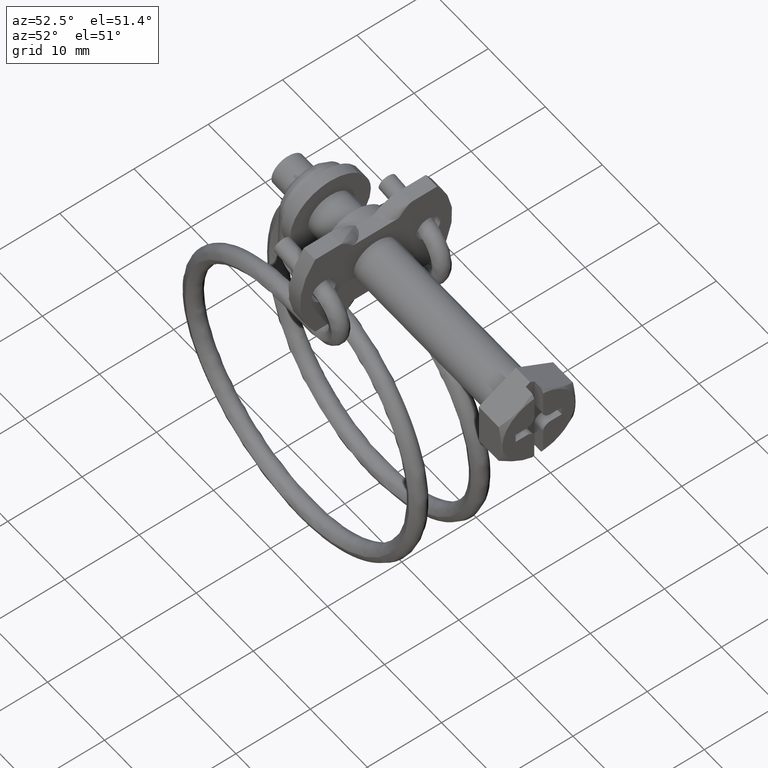
[diagram: clean part render]
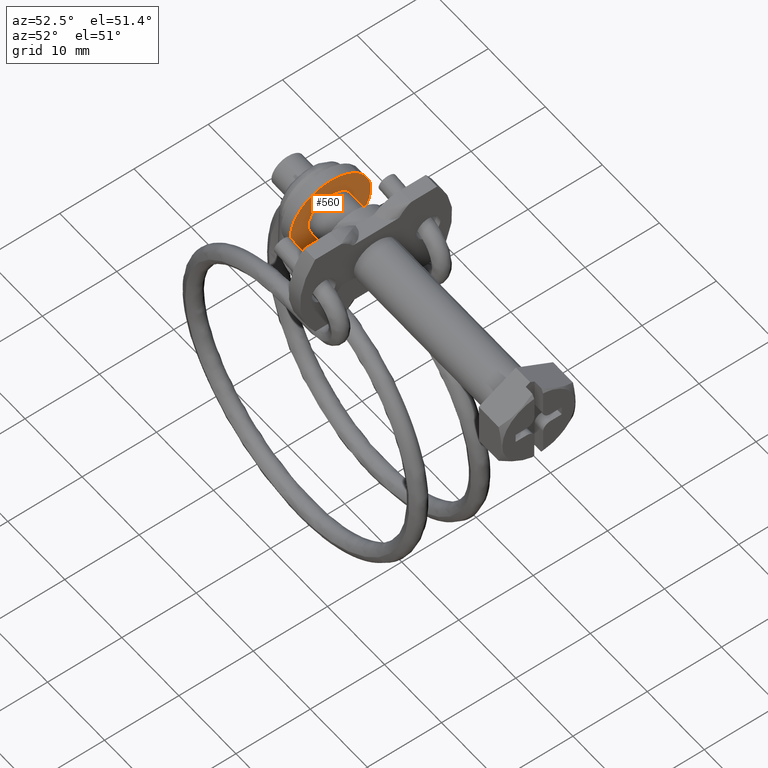
[diagram: same view with one face highlighted and labeled with its STEP entity id]
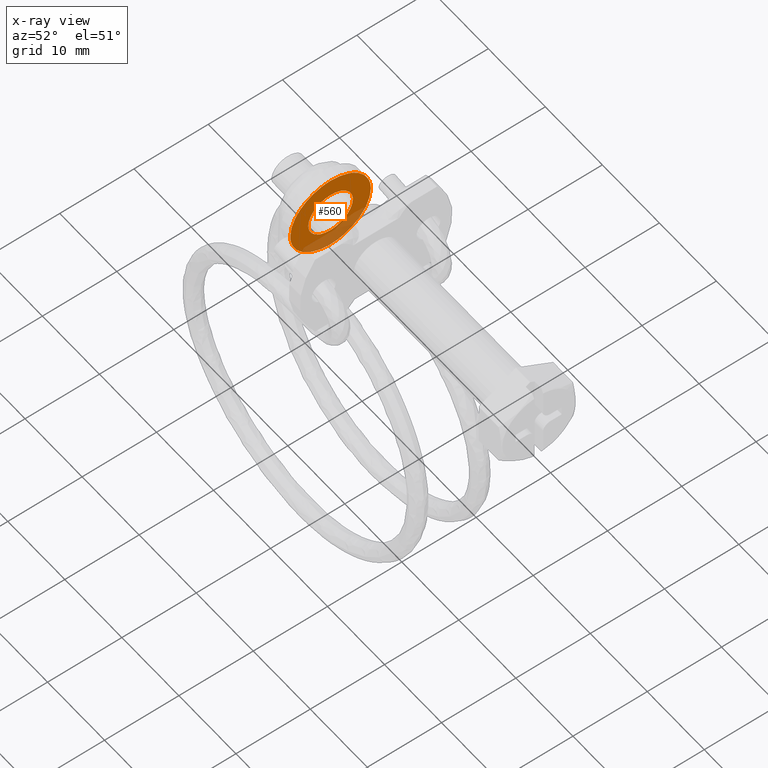
[diagram: x-ray of the same camera — body ghosted, the highlighted face saturated]
A machine part, auxiliary view. The second image highlights one B-rep face of the part: STEP entity #560.
The next image is the same camera in x-ray: the body ghosted, the highlighted face saturated — about 23% of this face is hidden behind the body in this view.
In plain terms, the highlighted face is a freeform B-spline surface patch.
Its self-contained STEP definition (entity closure, byte-faithful):
#342=CARTESIAN_POINT('',(-32.500000000000000,3.734323521256805,3.935155867043152));
#343=VERTEX_POINT('',#342);
#349=CARTESIAN_POINT('',(-32.500000000000000,5.424999999999884,-0.000000421098080));
#350=VERTEX_POINT('',#349);
#351=CARTESIAN_POINT('',(-32.500000000000000,3.734323521256805,3.935155867043152));
#352=CARTESIAN_POINT('',(-32.499999999999979,4.033793532143092,3.651083841868599));
#353=CARTESIAN_POINT('',(-32.500000000000007,4.567369683665546,3.014126316166802));
#354=CARTESIAN_POINT('',(-32.500000000000050,5.099673369908720,1.964227579516659));
#355=CARTESIAN_POINT('',(-32.499999999999901,5.371955420877497,0.940178816455195));
#356=CARTESIAN_POINT('',(-32.500000000000149,5.425016577167388,0.298106872457630));
#357=CARTESIAN_POINT('',(-32.500000000000000,5.424999999999884,-0.000000421098080));
#358=B_SPLINE_CURVE_WITH_KNOTS('',3,(#351,#352,#353,#354,#355,#356,#357),.UNSPECIFIED.,.F.,.U.,(4,1,1,1,4),(2.738050E-009,1.238299528593752,2.476597508122359,3.508514047958686,4.402841052552716),.UNSPECIFIED.);
#359=EDGE_CURVE('',#343,#350,#358,.T.);
#361=CARTESIAN_POINT('',(-32.500000000000000,0.0,-5.424999999999900));
#362=VERTEX_POINT('',#361);
#363=CARTESIAN_POINT('',(-32.500000000000000,5.424999999999884,-0.000000421098080));
#364=CARTESIAN_POINT('',(-32.500000000000057,5.425128311448582,-0.466039566988412));
#365=CARTESIAN_POINT('',(-32.499999999999922,5.335805438647428,-1.153905723362684));
#366=CARTESIAN_POINT('',(-32.500000000000057,5.049793430154235,-2.019457337929087));
#367=CARTESIAN_POINT('',(-32.499999999999957,4.736108573469029,-2.682723676852972));
#368=CARTESIAN_POINT('',(-32.500000000000327,4.233723725335923,-3.444780517004545));
#369=CARTESIAN_POINT('',(-32.499999999999368,3.500881994840348,-4.195873404332564));
#370=CARTESIAN_POINT('',(-32.500000000000512,2.647973794513322,-4.765699434653855));
#371=CARTESIAN_POINT('',(-32.500000000000128,1.874923719669006,-5.108327825447629));
#372=CARTESIAN_POINT('',(-32.499999999999517,1.020780500591491,-5.356044465367443));
#373=CARTESIAN_POINT('',(-32.500000000000490,0.399453875268827,-5.425077895267445));
#374=CARTESIAN_POINT('',(-32.500000000000000,0.0,-5.424999999999900));
#375=B_SPLINE_CURVE_WITH_KNOTS('',3,(#363,#364,#365,#366,#367,#368,#369,#370,#371,#372,#373,#374),.UNSPECIFIED.,.F.,.U.,(4,1,1,1,1,1,1,1,1,4),(0.000000010160747,1.398078814485325,2.063830060229409,2.729584752818163,3.595072530238858,4.793400779355290,5.858615189520917,6.657520546147322,7.323278233466141,8.521623304758112),.UNSPECIFIED.);
#376=EDGE_CURVE('',#350,#362,#375,.T.);
#378=CARTESIAN_POINT('',(-32.500000000000000,-3.734323521256823,-3.935155867043171));
#379=VERTEX_POINT('',#378);
#380=CARTESIAN_POINT('',(-32.500000000000000,0.0,-5.424999999999900));
#381=CARTESIAN_POINT('',(-32.500000000000071,-0.300327275246052,-5.425020422372140));
#382=CARTESIAN_POINT('',(-32.499999999999957,-0.922427690450401,-5.373216451881911));
#383=CARTESIAN_POINT('',(-32.499999999999922,-1.776869925675551,-5.150447426223127));
#384=CARTESIAN_POINT('',(-32.500000000000107,-2.760856510169396,-4.716722912087714));
#385=CARTESIAN_POINT('',(-32.500000000000028,-3.376523773262524,-4.274919365831121));
#386=CARTESIAN_POINT('',(-32.500000000000000,-3.734323521256823,-3.935155867043171));
#387=B_SPLINE_CURVE_WITH_KNOTS('',3,(#380,#381,#382,#383,#384,#385,#386),.UNSPECIFIED.,.F.,.U.,(4,1,1,1,4),(4.830669E-009,0.900983837904498,1.866327984316228,2.638590891575695,4.118783006225534),.UNSPECIFIED.);
#388=EDGE_CURVE('',#362,#379,#387,.T.);
#422=CARTESIAN_POINT('',(-32.500000000000000,-5.424999999999884,0.000000421097976));
#423=VERTEX_POINT('',#422);
#424=CARTESIAN_POINT('',(-32.500000000000000,-3.734323521256823,-3.935155867043171));
#425=CARTESIAN_POINT('',(-32.500000000000021,-4.000504082859345,-3.682631661197414));
#426=CARTESIAN_POINT('',(-32.499999999999957,-4.361073500345932,-3.263112738388295));
#427=CARTESIAN_POINT('',(-32.500000000000007,-4.798711584896426,-2.561877607439801));
#428=CARTESIAN_POINT('',(-32.500000000000043,-5.135143923064734,-1.830633724793704));
#429=CARTESIAN_POINT('',(-32.499999999999872,-5.371963045573501,-0.940182197536505));
#430=CARTESIAN_POINT('',(-32.500000000000171,-5.425016642505608,-0.298106676533509));
#431=CARTESIAN_POINT('',(-32.500000000000000,-5.424999999999884,0.000000421097976));
#432=B_SPLINE_CURVE_WITH_KNOTS('',3,(#424,#425,#426,#427,#428,#429,#430,#431),.UNSPECIFIED.,.F.,.U.,(4,1,1,1,1,4),(2.738073E-009,1.100710293663894,1.651066817475276,2.476597508122321,3.508514047958615,4.402841052552622),.UNSPECIFIED.);
#433=EDGE_CURVE('',#379,#423,#432,.T.);
#435=CARTESIAN_POINT('',(-32.500000000000000,0.0,5.424999999999900));
#436=VERTEX_POINT('',#435);
#437=CARTESIAN_POINT('',(-32.500000000000000,-5.424999999999884,0.000000421097976));
#438=CARTESIAN_POINT('',(-32.500000000000043,-5.425089690360871,0.421645677388386));
#439=CARTESIAN_POINT('',(-32.500000000000000,-5.339182492749487,1.153931178590795));
#440=CARTESIAN_POINT('',(-32.500000000000043,-5.052695618084429,2.021046074732653));
#441=CARTESIAN_POINT('',(-32.500000000000028,-4.731076768895987,2.679954147940666));
#442=CARTESIAN_POINT('',(-32.499999999999957,-4.286602510898407,3.372567390980862));
#443=CARTESIAN_POINT('',(-32.500000000000107,-3.602792516243853,4.108685654867263));
#444=CARTESIAN_POINT('',(-32.499999999999993,-2.727671977809103,4.724964960837192));
#445=CARTESIAN_POINT('',(-32.500000000000007,-1.877135703673148,5.114509213810776));
#446=CARTESIAN_POINT('',(-32.500000000000057,-0.976411637543085,5.363776632125516));
#447=CARTESIAN_POINT('',(-32.499999999999893,-0.355064284474201,5.425041221626096));
#448=CARTESIAN_POINT('',(-32.500000000000000,0.0,5.424999999999900));
#449=B_SPLINE_CURVE_WITH_KNOTS('',3,(#437,#438,#439,#440,#441,#442,#443,#444,#445,#446,#447,#448),.UNSPECIFIED.,.F.,.U.,(4,1,1,1,1,1,1,1,1,4),(0.000000010163204,1.264925205504980,2.196981822686423,2.729584752819748,3.461922550503370,4.660252527080229,5.725463549483363,6.657520546147659,7.456431167808989,8.521623304758148),.UNSPECIFIED.);
#450=EDGE_CURVE('',#423,#436,#449,.T.);
#452=CARTESIAN_POINT('',(-32.500000000000000,0.0,5.424999999999900));
#453=CARTESIAN_POINT('',(-32.499999999999993,0.300323464171146,5.425006746811111));
#454=CARTESIAN_POINT('',(-32.500000000000142,1.008250495581807,5.366135380943967));
#455=CARTESIAN_POINT('',(-32.499999999999801,1.983717883626720,5.086923420467725));
#456=CARTESIAN_POINT('',(-32.500000000000419,2.941088127837189,4.595106849608646));
#457=CARTESIAN_POINT('',(-32.499999999999638,3.469823890744552,4.186222744901900));
#458=CARTESIAN_POINT('',(-32.500000000000000,3.734323521256805,3.935155867043152));
#459=B_SPLINE_CURVE_WITH_KNOTS('',3,(#452,#453,#454,#455,#456,#457,#458),.UNSPECIFIED.,.F.,.U.,(4,1,1,1,4),(4.831139E-009,0.900983837904820,2.123745371337090,3.024731161882925,4.118783006225520),.UNSPECIFIED.);
#460=EDGE_CURVE('',#436,#343,#459,.T.);
#466=CARTESIAN_POINT('',(-32.500000000000000,-5.966957478970467,-5.966957478970485));
#467=CARTESIAN_POINT('',(-32.500000000000000,-5.966957478970467,5.966957769990163));
#468=CARTESIAN_POINT('',(-32.500000000000000,5.966957769990145,-5.966957478970485));
#469=CARTESIAN_POINT('',(-32.500000000000000,5.966957769990145,5.966957769990163));
#470=B_SPLINE_SURFACE_WITH_KNOTS('',1,1,((#466,#468),(#467,#469)),.UNSPECIFIED.,.F.,.F.,.U.,(2,2),(2,2),(0.0,11.933915248960650),(0.0,11.933915248960609),.UNSPECIFIED.);
#471=ORIENTED_EDGE('',*,*,#450,.F.);
#472=ORIENTED_EDGE('',*,*,#433,.F.);
#473=ORIENTED_EDGE('',*,*,#388,.F.);
#474=ORIENTED_EDGE('',*,*,#376,.F.);
#475=ORIENTED_EDGE('',*,*,#359,.F.);
#476=ORIENTED_EDGE('',*,*,#460,.F.);
#477=EDGE_LOOP('',(#471,#472,#473,#474,#475,#476));
#478=FACE_OUTER_BOUND('',#477,.T.);
#479=CARTESIAN_POINT('',(-32.500000000000007,2.999999999999947,-0.000000562660501));
#480=VERTEX_POINT('',#479);
#481=CARTESIAN_POINT('',(-32.500000000000000,0.0,-3.0));
#482=VERTEX_POINT('',#481);
#483=CARTESIAN_POINT('',(-32.500000000000007,2.999999999999947,-0.000000562660501));
#484=CARTESIAN_POINT('',(-32.500000000000028,3.000127910127254,-0.294543090671329));
#485=CARTESIAN_POINT('',(-32.499999999999943,2.936228327638869,-0.723976756098727));
#486=CARTESIAN_POINT('',(-32.500000000000107,2.722725734959277,-1.287595401329292));
#487=CARTESIAN_POINT('',(-32.499999999999723,2.455646557182090,-1.759179625846479));
#488=CARTESIAN_POINT('',(-32.500000000000163,2.098032409598083,-2.168623616720498));
#489=CARTESIAN_POINT('',(-32.500000000000007,1.663760698721218,-2.511796647226309));
#490=CARTESIAN_POINT('',(-32.499999999999837,1.179585134259990,-2.782238739382724));
#491=CARTESIAN_POINT('',(-32.500000000000533,0.601321748466204,-2.961506256406963));
#492=CARTESIAN_POINT('',(-32.499999999999361,0.184075773445772,-3.000013391802118));
#493=CARTESIAN_POINT('',(-32.500000000000000,0.0,-3.0));
#494=B_SPLINE_CURVE_WITH_KNOTS('',3,(#483,#484,#485,#486,#487,#488,#489,#490,#491,#492,#493),.UNSPECIFIED.,.F.,.U.,(4,1,1,1,1,1,1,1,4),(0.000000052757639,0.883578291117803,1.288552762760812,1.803973236946817,2.503467714095439,2.908441088020020,3.460680740443774,4.160186289832596,4.712418231500989),.UNSPECIFIED.);
#495=EDGE_CURVE('',#480,#482,#494,.T.);
#496=ORIENTED_EDGE('',*,*,#495,.T.);
#497=CARTESIAN_POINT('',(-32.499999999999993,-2.065063661757091,-2.176122981372206));
#498=VERTEX_POINT('',#497);
#499=CARTESIAN_POINT('',(-32.500000000000000,0.0,-3.0));
#500=CARTESIAN_POINT('',(-32.499999999999979,-0.201669094450943,-3.000023730429055));
#501=CARTESIAN_POINT('',(-32.500000000000057,-0.593127768308019,-2.960380380857487));
#502=CARTESIAN_POINT('',(-32.499999999999950,-1.151543906949019,-2.789757411605124));
#503=CARTESIAN_POINT('',(-32.499999999999879,-1.646652126212904,-2.527949675911322));
#504=CARTESIAN_POINT('',(-32.500000000000099,-1.935999552336932,-2.298621966531675));
#505=CARTESIAN_POINT('',(-32.499999999999993,-2.065063661757091,-2.176122981372206));
#506=B_SPLINE_CURVE_WITH_KNOTS('',3,(#499,#500,#501,#502,#503,#504,#505),.UNSPECIFIED.,.F.,.U.,(4,1,1,1,4),(0.000000013706404,0.605006050974585,1.174414051521690,1.743840053247150,2.277668018251598),.UNSPECIFIED.);
#507=EDGE_CURVE('',#482,#498,#506,.T.);
#508=ORIENTED_EDGE('',*,*,#507,.T.);
#509=CARTESIAN_POINT('',(-32.499999999999993,-2.999999999999947,0.000000562660518));
#510=VERTEX_POINT('',#509);
#511=CARTESIAN_POINT('',(-32.499999999999993,-2.065063661757091,-2.176122981372206));
#512=CARTESIAN_POINT('',(-32.499999999999950,-2.221467190711989,-2.027757368855340));
#513=CARTESIAN_POINT('',(-32.500000000000057,-2.460770420025052,-1.745713666242331));
#514=CARTESIAN_POINT('',(-32.499999999999957,-2.713492821112691,-1.304224868130897));
#515=CARTESIAN_POINT('',(-32.500000000000057,-2.931856210385186,-0.748094730066699));
#516=CARTESIAN_POINT('',(-32.499999999999837,-3.000161043447092,-0.304365364787053));
#517=CARTESIAN_POINT('',(-32.499999999999993,-2.999999999999947,0.000000562660518));
#518=B_SPLINE_CURVE_WITH_KNOTS('',3,(#511,#512,#513,#514,#515,#516,#517),.UNSPECIFIED.,.F.,.U.,(4,1,1,1,4),(0.000000014316321,0.646731230268323,1.103253341885552,1.521719099326301,2.434751081231620),.UNSPECIFIED.);
#519=EDGE_CURVE('',#498,#510,#518,.T.);
#520=ORIENTED_EDGE('',*,*,#519,.T.);
#521=CARTESIAN_POINT('',(-32.500000000000000,0.0,3.0));
#522=VERTEX_POINT('',#521);
#523=CARTESIAN_POINT('',(-32.499999999999993,-2.999999999999947,0.000000562660518));
#524=CARTESIAN_POINT('',(-32.500000000000021,-3.000021982926730,0.196347936519215));
#525=CARTESIAN_POINT('',(-32.499999999999922,-2.964935684128645,0.552222095526697));
#526=CARTESIAN_POINT('',(-32.500000000000107,-2.813911204835456,1.085234398643881));
#527=CARTESIAN_POINT('',(-32.499999999999780,-2.559731269035905,1.606096374022181));
#528=CARTESIAN_POINT('',(-32.500000000000171,-2.210290498647421,2.053825910188410));
#529=CARTESIAN_POINT('',(-32.499999999999957,-1.749380533681679,2.461407516717904));
#530=CARTESIAN_POINT('',(-32.499999999999908,-1.268682798524579,2.741568042723466));
#531=CARTESIAN_POINT('',(-32.500000000000171,-0.650374948695557,2.950003875980607));
#532=CARTESIAN_POINT('',(-32.499999999999702,-0.245440952825507,3.000065332039821));
#533=CARTESIAN_POINT('',(-32.500000000000000,0.0,3.0));
#534=B_SPLINE_CURVE_WITH_KNOTS('',3,(#523,#524,#525,#526,#527,#528,#529,#530,#531,#532,#533),.UNSPECIFIED.,.F.,.U.,(4,1,1,1,1,1,1,1,4),(0.000000052756082,0.589042438805351,1.067655599799372,1.656713101766905,2.319408492579250,2.761181487489563,3.497497454396992,3.976111150589480,4.712418231500990),.UNSPECIFIED.);
#535=EDGE_CURVE('',#510,#522,#534,.T.);
#536=ORIENTED_EDGE('',*,*,#535,.T.);
#537=CARTESIAN_POINT('',(-32.500000000000000,2.065063661757094,2.176122981372210));
#538=VERTEX_POINT('',#537);
#539=CARTESIAN_POINT('',(-32.500000000000000,0.0,3.0));
#540=CARTESIAN_POINT('',(-32.500000000000000,0.249123885399018,3.000065991890658));
#541=CARTESIAN_POINT('',(-32.500000000000021,0.699877970762142,2.943515699776381));
#542=CARTESIAN_POINT('',(-32.499999999999957,1.416729668492832,2.681914874001332));
#543=CARTESIAN_POINT('',(-32.500000000000043,1.841427552241429,2.388562780757972));
#544=CARTESIAN_POINT('',(-32.500000000000000,2.065063661757094,2.176122981372210));
#545=B_SPLINE_CURVE_WITH_KNOTS('',3,(#539,#540,#541,#542,#543,#544),.UNSPECIFIED.,.F.,.U.,(4,1,1,4),(0.000000013706231,0.747363142665810,1.352362341766070,2.277668018251599),.UNSPECIFIED.);
#546=EDGE_CURVE('',#522,#538,#545,.T.);
#547=ORIENTED_EDGE('',*,*,#546,.T.);
#548=CARTESIAN_POINT('',(-32.500000000000000,2.065063661757094,2.176122981372210));
#549=CARTESIAN_POINT('',(-32.499999999999979,2.249085587420466,2.001592252010981));
#550=CARTESIAN_POINT('',(-32.500000000000028,2.540061808412328,1.645069672493179));
#551=CARTESIAN_POINT('',(-32.499999999999993,2.804136668892371,1.107340513784658));
#552=CARTESIAN_POINT('',(-32.500000000000028,2.961548651313430,0.570625211060014));
#553=CARTESIAN_POINT('',(-32.500000000000007,3.000041045312249,0.215578758285213));
#554=CARTESIAN_POINT('',(-32.500000000000007,2.999999999999947,-0.000000562660501));
#555=B_SPLINE_CURVE_WITH_KNOTS('',3,(#548,#549,#550,#551,#552,#553,#554),.UNSPECIFIED.,.F.,.U.,(4,1,1,1,4),(0.000000014316516,0.760860010237286,1.369547055072798,1.788019923958518,2.434751081231602),.UNSPECIFIED.);
#556=EDGE_CURVE('',#538,#480,#555,.T.);
#557=ORIENTED_EDGE('',*,*,#556,.T.);
#558=EDGE_LOOP('',(#496,#508,#520,#536,#547,#557));
#559=FACE_BOUND('',#558,.T.);
#560=ADVANCED_FACE('',(#478,#559),#470,.F.);